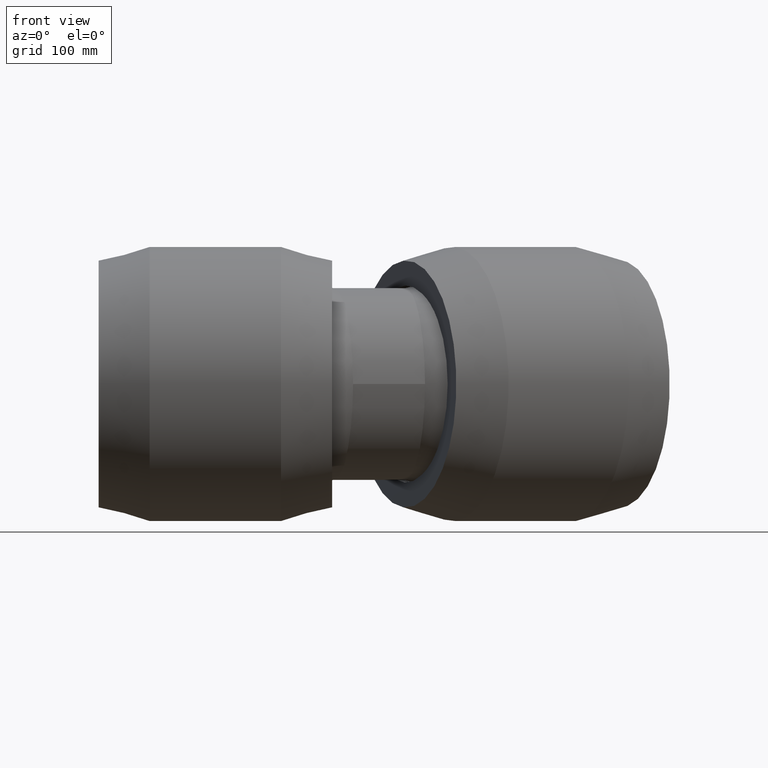
[diagram: clean part render]
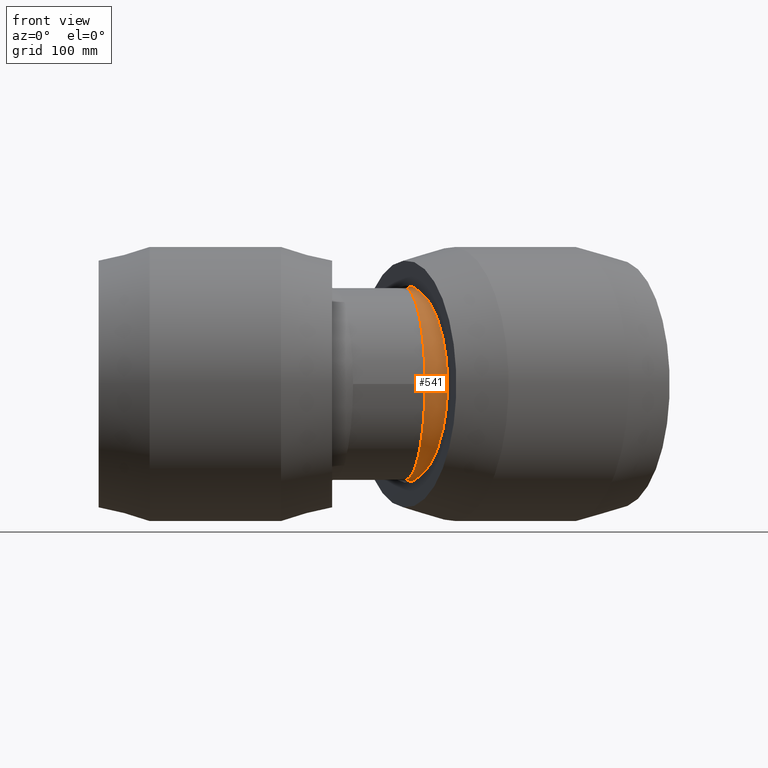
[diagram: same view with one face highlighted and labeled with its STEP entity id]
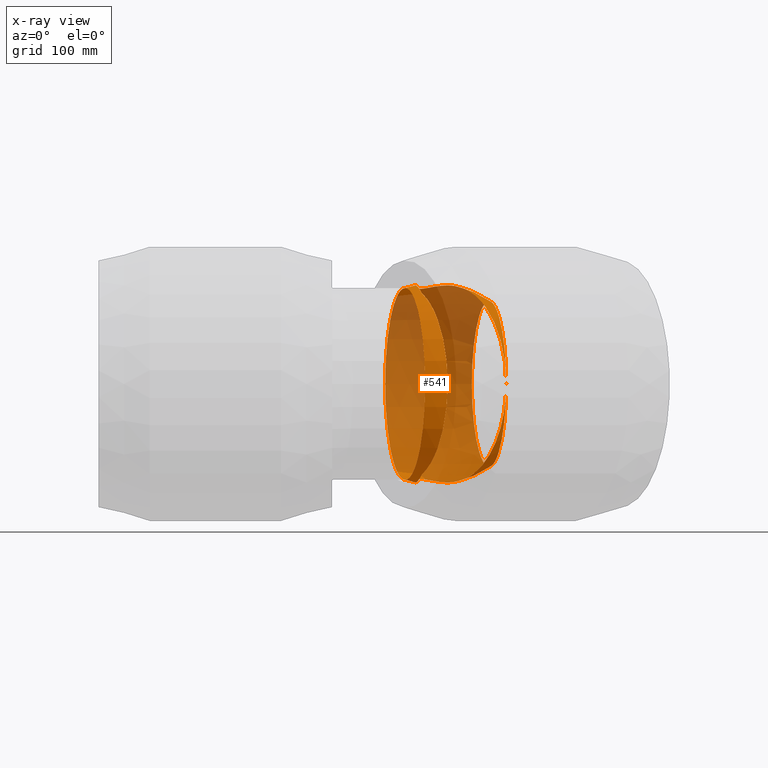
[diagram: x-ray of the same camera — body ghosted, the highlighted face saturated]
A machine part, front view. The second image highlights one B-rep face of the part: STEP entity #541.
The next image is the same camera in x-ray: the body ghosted, the highlighted face saturated — about 74% of this face is hidden behind the body in this view.
In plain terms, the highlighted spherical surface has radius 102.978 mm.
Its self-contained STEP definition (entity closure, byte-faithful):
#63=FACE_BOUND('',#164,.T.);
#113=FACE_OUTER_BOUND('',#163,.T.);
#163=EDGE_LOOP('',(#427,#428,#429,#430));
#164=EDGE_LOOP('',(#431));
#263=B_SPLINE_CURVE_WITH_KNOTS('',3,(#894,#895,#896,#897,#898,#899,#900,
#901,#902,#903,#904,#905,#906,#907,#908,#909,#910,#911,#912,#913,#914,#915,
#916,#917,#918,#919,#920,#921,#922,#923,#924,#925,#926,#927,#928,#929,#930,
#931,#932,#933,#934,#935,#936,#937,#938,#939,#940,#941,#942,#943,#944,#945),
 .UNSPECIFIED.,.F.,.F.,(4,2,2,2,2,2,2,2,2,2,2,2,2,2,2,2,2,2,2,2,2,2,2,2,
2,4),(-44.4944795922283,-44.0868970557583,-42.6855414593793,-41.2841858630003,
-40.16901790956,-39.0538499561197,-38.6337725982678,-38.2136952404158,-37.7423374094864,
-37.5066584940217,-37.270979578557,-37.0353006630923,-36.7996217476276,
-36.3282639166982,-35.9081865588462,-35.4881092009943,-34.372941247554,
-33.2577732941137,-31.8564176977347,-30.4550621013557,-29.0537065049767,
-27.6523509085977,-25.3981356287679,-23.1439203489381,-20.8897050691083,
-18.6354897892785),.UNSPECIFIED.);
#264=B_SPLINE_CURVE_WITH_KNOTS('',3,(#948,#949,#950,#951,#952,#953,#954,
#955,#956,#957,#958,#959,#960,#961,#962,#963,#964,#965,#966,#967,#968,#969,
#970,#971,#972,#973,#974,#975,#976,#977,#978,#979,#980,#981,#982,#983,#984,
#985,#986,#987,#988,#989,#990,#991,#992,#993,#994,#995,#996,#997,#998,#999,
#1000),.UNSPECIFIED.,.F.,.F.,(4,2,2,2,2,2,2,2,2,2,2,2,2,2,2,3,2,2,2,2,2,
2,2,2,2,4),(-18.6354897892785,-16.3812745094487,-14.1270592296189,-11.8728439497891,
-9.61862866995932,-8.2172730735803,-6.8159174772013,-5.41456188082229,-4.01320628444329,
-2.89803833100298,-1.78287037756267,-1.36279301971072,-0.94271566185877,
-0.471357830929392,-0.235678915464703,0.,0.235678915464689,0.471357830929378,
0.942715661858756,1.36279301971071,1.78287037756266,2.89803833100297,4.01320628444327,
5.41456188082228,6.81591747720129,7.22350001367124),.UNSPECIFIED.);
#271=CIRCLE('',#594,85.003405444099);
#272=CIRCLE('',#595,99.0091480488062);
#273=CIRCLE('',#596,98.503405444099);
#319=VERTEX_POINT('',#891);
#320=VERTEX_POINT('',#893);
#321=VERTEX_POINT('',#946);
#322=VERTEX_POINT('',#1001);
#371=EDGE_CURVE('',#319,#319,#271,.T.);
#372=EDGE_CURVE('',#320,#319,#263,.T.);
#373=EDGE_CURVE('',#321,#320,#272,.T.);
#374=EDGE_CURVE('',#319,#321,#264,.T.);
#375=EDGE_CURVE('',#322,#322,#273,.T.);
#427=ORIENTED_EDGE('',*,*,#371,.T.);
#428=ORIENTED_EDGE('',*,*,#372,.F.);
#429=ORIENTED_EDGE('',*,*,#373,.F.);
#430=ORIENTED_EDGE('',*,*,#374,.F.);
#431=ORIENTED_EDGE('',*,*,#375,.F.);
#539=SPHERICAL_SURFACE('',#593,102.97831225859);
#541=ADVANCED_FACE('',(#113,#63),#539,.T.);
#593=AXIS2_PLACEMENT_3D('',#890,#693,#694);
#594=AXIS2_PLACEMENT_3D('',#892,#695,#696);
#595=AXIS2_PLACEMENT_3D('',#947,#697,#698);
#596=AXIS2_PLACEMENT_3D('',#1002,#699,#700);
#693=DIRECTION('center_axis',(0.,0.,1.));
#694=DIRECTION('ref_axis',(1.,0.,0.));
#695=DIRECTION('center_axis',(-0.978147600733806,-0.207911690817759,0.));
#696=DIRECTION('ref_axis',(0.207911690817759,-0.978147600733806,0.));
#697=DIRECTION('center_axis',(0.913545457642601,0.406736643075801,1.19788532833232E-16));
#698=DIRECTION('ref_axis',(1.31124873788268E-16,0.,-1.));
#699=DIRECTION('center_axis',(-0.978147600733806,-0.207911690817759,0.));
#700=DIRECTION('ref_axis',(0.207911690817759,-0.978147600733806,0.));
#890=CARTESIAN_POINT('Origin',(224.337455805076,22.1776108593249,0.));
#891=CARTESIAN_POINT('',(298.86917410204,-48.8826154513871,0.));
#892=CARTESIAN_POINT('Origin',(281.19597235089,34.2632616379612,0.));
#893=CARTESIAN_POINT('',(212.410346233082,-20.647958780312,-92.888360077708));
#894=CARTESIAN_POINT('Ctrl Pts',(212.410346233082,-20.647958780312,-92.8883600777079));
#895=CARTESIAN_POINT('Ctrl Pts',(212.130038492774,-19.3292145453387,-93.4603662138345));
#896=CARTESIAN_POINT('Ctrl Pts',(211.850792513671,-17.9958866901814,-94.0045555210236));
#897=CARTESIAN_POINT('Ctrl Pts',(210.621880627971,-12.0275338480367,-96.2904126452439));
#898=CARTESIAN_POINT('Ctrl Pts',(209.696328194863,-7.26273425603856,-97.713772299679));
#899=CARTESIAN_POINT('Ctrl Pts',(208.011559026366,2.26929711368874,-99.8308668369658));
#900=CARTESIAN_POINT('Ctrl Pts',(207.252545968541,7.03655227631827,-100.524658511217));
#901=CARTESIAN_POINT('Ctrl Pts',(206.146371653986,15.3246271303977,-101.19521549947));
#902=CARTESIAN_POINT('Ctrl Pts',(205.682626573416,19.3807424119782,-101.317745270554));
#903=CARTESIAN_POINT('Ctrl Pts',(205.072498281851,27.4981714360259,-101.102243695484));
#904=CARTESIAN_POINT('Ctrl Pts',(204.928267398887,31.5596710792749,-100.765127499585));
#905=CARTESIAN_POINT('Ctrl Pts',(205.113135412169,36.6353865138215,-100.13936162297));
#906=CARTESIAN_POINT('Ctrl Pts',(205.210422458582,38.1575758308989,-99.9284231693959));
#907=CARTESIAN_POINT('Ctrl Pts',(205.556181501718,41.174884705791,-99.4648669842616));
#908=CARTESIAN_POINT('Ctrl Pts',(205.806971711587,42.66982593837,-99.2128207346002));
#909=CARTESIAN_POINT('Ctrl Pts',(206.507915500965,45.5140662267305,-98.7143291816168));
#910=CARTESIAN_POINT('Ctrl Pts',(207.046492626256,47.1250547684783,-98.4165998963655));
#911=CARTESIAN_POINT('Ctrl Pts',(208.260105592444,49.2120132540271,-98.0604628233301));
#912=CARTESIAN_POINT('Ctrl Pts',(208.732787271436,49.8531159197202,-97.9576527535269));
#913=CARTESIAN_POINT('Ctrl Pts',(209.836912481282,50.9452022583513,-97.81258059057));
#914=CARTESIAN_POINT('Ctrl Pts',(210.468701648422,51.3958806670846,-97.7706516542201));
#915=CARTESIAN_POINT('Ctrl Pts',(211.904057666321,52.0349423398837,-97.7706516542201));
#916=CARTESIAN_POINT('Ctrl Pts',(212.661726462225,52.2028904733276,-97.8125805905699));
#917=CARTESIAN_POINT('Ctrl Pts',(214.212108744914,52.2926670157398,-97.9576527535268));
#918=CARTESIAN_POINT('Ctrl Pts',(215.004826652001,52.2149565441463,-98.0604628233302));
#919=CARTESIAN_POINT('Ctrl Pts',(217.367804631474,51.7203989432203,-98.4165998963656));
#920=CARTESIAN_POINT('Ctrl Pts',(218.925380868594,51.0426780072242,-98.7143291816168));
#921=CARTESIAN_POINT('Ctrl Pts',(221.508086264113,49.6604125284697,-99.2128207346002));
#922=CARTESIAN_POINT('Ctrl Pts',(222.786855510696,48.8464750417884,-99.4648669842616));
#923=CARTESIAN_POINT('Ctrl Pts',(225.260510946126,47.084450368528,-99.9284231693959));
#924=CARTESIAN_POINT('Ctrl Pts',(226.456815800867,46.1382052729269,-100.13936162297));
#925=CARTESIAN_POINT('Ctrl Pts',(230.352508307469,42.8792724339706,-100.765127499585));
#926=CARTESIAN_POINT('Ctrl Pts',(233.274281452855,40.0544142806086,-101.102243695484));
#927=CARTESIAN_POINT('Ctrl Pts',(238.898451314564,34.1693803929185,-101.317745270554));
#928=CARTESIAN_POINT('Ctrl Pts',(241.602426370653,31.1106797581269,-101.19521549947));
#929=CARTESIAN_POINT('Ctrl Pts',(247.021491221794,24.7428274875312,-100.524658511217));
#930=CARTESIAN_POINT('Ctrl Pts',(250.056373360016,20.9888545235011,-99.8308668369658));
#931=CARTESIAN_POINT('Ctrl Pts',(256.012722533426,13.3586531035518,-97.713772299679));
#932=CARTESIAN_POINT('Ctrl Pts',(258.934343233874,9.48256036200716,-96.2904126452439));
#933=CARTESIAN_POINT('Ctrl Pts',(264.532284820978,1.88001664043693,-92.7487783401459));
#934=CARTESIAN_POINT('Ctrl Pts',(267.211225708555,-1.84979264529727,-90.6288961245135));
#935=CARTESIAN_POINT('Ctrl Pts',(272.218047596203,-8.93275456077942,-85.8409411109716));
#936=CARTESIAN_POINT('Ctrl Pts',(274.54600232832,-12.2858490915666,-83.1728594685178));
#937=CARTESIAN_POINT('Ctrl Pts',(280.055287951104,-20.3072232065303,-75.8390124697811));
#938=CARTESIAN_POINT('Ctrl Pts',(283.215424584681,-25.0037029706115,-70.5171555146997));
#939=CARTESIAN_POINT('Ctrl Pts',(288.770068952503,-33.3517955978361,-58.5686279993382));
#940=CARTESIAN_POINT('Ctrl Pts',(291.165519921559,-37.003831290653,-51.942691383637));
#941=CARTESIAN_POINT('Ctrl Pts',(295.017946553032,-42.9114652367957,-37.8702632320556));
#942=CARTESIAN_POINT('Ctrl Pts',(296.479231205592,-45.1733252878477,-30.4088404274743));
#943=CARTESIAN_POINT('Ctrl Pts',(298.405120694036,-48.1593217898905,-15.2308521553799));
#944=CARTESIAN_POINT('Ctrl Pts',(298.86917410204,-48.882615451387,-7.51405093276609));
#945=CARTESIAN_POINT('Ctrl Pts',(298.86917410204,-48.882615451387,-1.06581410364015E-13));
#946=CARTESIAN_POINT('',(212.410346233082,-20.6479587803123,92.8883600777078));
#947=CARTESIAN_POINT('Origin',(198.470703751161,10.6609908491586,-3.39177459838198E-15));
#948=CARTESIAN_POINT('Ctrl Pts',(298.86917410204,-48.882615451387,-1.08801856413265E-13));
#949=CARTESIAN_POINT('Ctrl Pts',(298.86917410204,-48.882615451387,7.51405093276587));
#950=CARTESIAN_POINT('Ctrl Pts',(298.405120694036,-48.1593217898905,15.2308521553797));
#951=CARTESIAN_POINT('Ctrl Pts',(296.479231205592,-45.1733252878478,30.4088404274741));
#952=CARTESIAN_POINT('Ctrl Pts',(295.017946553032,-42.9114652367958,37.8702632320554));
#953=CARTESIAN_POINT('Ctrl Pts',(291.165519921559,-37.0038312906531,51.9426913836368));
#954=CARTESIAN_POINT('Ctrl Pts',(288.770068952503,-33.3517955978362,58.568627999338));
#955=CARTESIAN_POINT('Ctrl Pts',(283.215424584681,-25.0037029706117,70.5171555146995));
#956=CARTESIAN_POINT('Ctrl Pts',(280.055287951104,-20.3072232065306,75.839012469781));
#957=CARTESIAN_POINT('Ctrl Pts',(274.54600232832,-12.2858490915668,83.1728594685177));
#958=CARTESIAN_POINT('Ctrl Pts',(272.218047596203,-8.93275456077965,85.8409411109715));
#959=CARTESIAN_POINT('Ctrl Pts',(267.211225708555,-1.84979264529747,90.6288961245135));
#960=CARTESIAN_POINT('Ctrl Pts',(264.532284820977,1.8800166404367,92.7487783401459));
#961=CARTESIAN_POINT('Ctrl Pts',(258.934343233874,9.48256036200694,96.2904126452439));
#962=CARTESIAN_POINT('Ctrl Pts',(256.012722533426,13.3586531035517,97.713772299679));
#963=CARTESIAN_POINT('Ctrl Pts',(250.056373360016,20.988854523501,99.8308668369658));
#964=CARTESIAN_POINT('Ctrl Pts',(247.021491221794,24.742827487531,100.524658511217));
#965=CARTESIAN_POINT('Ctrl Pts',(241.602426370653,31.1106797581266,101.19521549947));
#966=CARTESIAN_POINT('Ctrl Pts',(238.898451314564,34.1693803929183,101.317745270554));
#967=CARTESIAN_POINT('Ctrl Pts',(233.274281452855,40.0544142806084,101.102243695484));
#968=CARTESIAN_POINT('Ctrl Pts',(230.352508307469,42.8792724339704,100.765127499585));
#969=CARTESIAN_POINT('Ctrl Pts',(226.456815800866,46.1382052729267,100.13936162297));
#970=CARTESIAN_POINT('Ctrl Pts',(225.260510946126,47.0844503685278,99.9284231693959));
#971=CARTESIAN_POINT('Ctrl Pts',(222.786855510695,48.8464750417882,99.4648669842617));
#972=CARTESIAN_POINT('Ctrl Pts',(221.508086264113,49.6604125284694,99.2128207346002));
#973=CARTESIAN_POINT('Ctrl Pts',(218.925380868593,51.0426780072237,98.7143291816169));
#974=CARTESIAN_POINT('Ctrl Pts',(217.367804631473,51.7203989432205,98.4165998963655));
#975=CARTESIAN_POINT('Ctrl Pts',(215.004826652001,52.2149565441464,98.0604628233301));
#976=CARTESIAN_POINT('Ctrl Pts',(214.212108744913,52.2926670157395,97.9576527535269));
#977=CARTESIAN_POINT('Ctrl Pts',(212.661726462224,52.2028904733274,97.81258059057));
#978=CARTESIAN_POINT('Ctrl Pts',(211.904057666321,52.0349423398835,97.7706516542202));
#979=CARTESIAN_POINT('Ctrl Pts',(211.186379657371,51.7154115034839,97.7706516542202));
#980=CARTESIAN_POINT('Ctrl Pts',(210.468701648422,51.3958806670844,97.7706516542202));
#981=CARTESIAN_POINT('Ctrl Pts',(209.836912481282,50.9452022583512,97.81258059057));
#982=CARTESIAN_POINT('Ctrl Pts',(208.732787271436,49.8531159197201,97.9576527535269));
#983=CARTESIAN_POINT('Ctrl Pts',(208.260105592444,49.2120132540271,98.0604628233301));
#984=CARTESIAN_POINT('Ctrl Pts',(207.046492626256,47.1250547684784,98.4165998963655));
#985=CARTESIAN_POINT('Ctrl Pts',(206.507915500966,45.5140662267305,98.7143291816169));
#986=CARTESIAN_POINT('Ctrl Pts',(205.806971711588,42.66982593837,99.2128207346002));
#987=CARTESIAN_POINT('Ctrl Pts',(205.556181501718,41.1748847057911,99.4648669842616));
#988=CARTESIAN_POINT('Ctrl Pts',(205.210422458582,38.1575758308989,99.9284231693959));
#989=CARTESIAN_POINT('Ctrl Pts',(205.113135412169,36.6353865138215,100.13936162297));
#990=CARTESIAN_POINT('Ctrl Pts',(204.928267398887,31.5596710792749,100.765127499585));
#991=CARTESIAN_POINT('Ctrl Pts',(205.072498281851,27.4981714360258,101.102243695484));
#992=CARTESIAN_POINT('Ctrl Pts',(205.682626573416,19.3807424119781,101.317745270554));
#993=CARTESIAN_POINT('Ctrl Pts',(206.146371653986,15.3246271303976,101.19521549947));
#994=CARTESIAN_POINT('Ctrl Pts',(207.252545968541,7.03655227631815,100.524658511217));
#995=CARTESIAN_POINT('Ctrl Pts',(208.011559026366,2.26929711368861,99.8308668369658));
#996=CARTESIAN_POINT('Ctrl Pts',(209.696328194863,-7.26273425603871,97.713772299679));
#997=CARTESIAN_POINT('Ctrl Pts',(210.621880627971,-12.0275338480369,96.2904126452439));
#998=CARTESIAN_POINT('Ctrl Pts',(211.850792513671,-17.9958866901816,94.0045555210236));
#999=CARTESIAN_POINT('Ctrl Pts',(212.130038492774,-19.3292145453389,93.4603662138345));
#1000=CARTESIAN_POINT('Ctrl Pts',(212.410346233082,-20.6479587803123,92.8883600777078));
#1001=CARTESIAN_POINT('',(215.446770992366,-80.416192653308,0.));
#1002=CARTESIAN_POINT('Origin',(194.966761415176,15.9346770459468,0.));